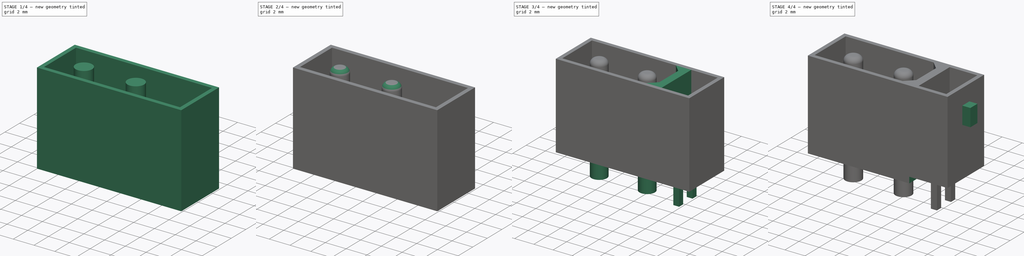
[diagram: build sequence overview — one tinted view per stage of 4, left to right]
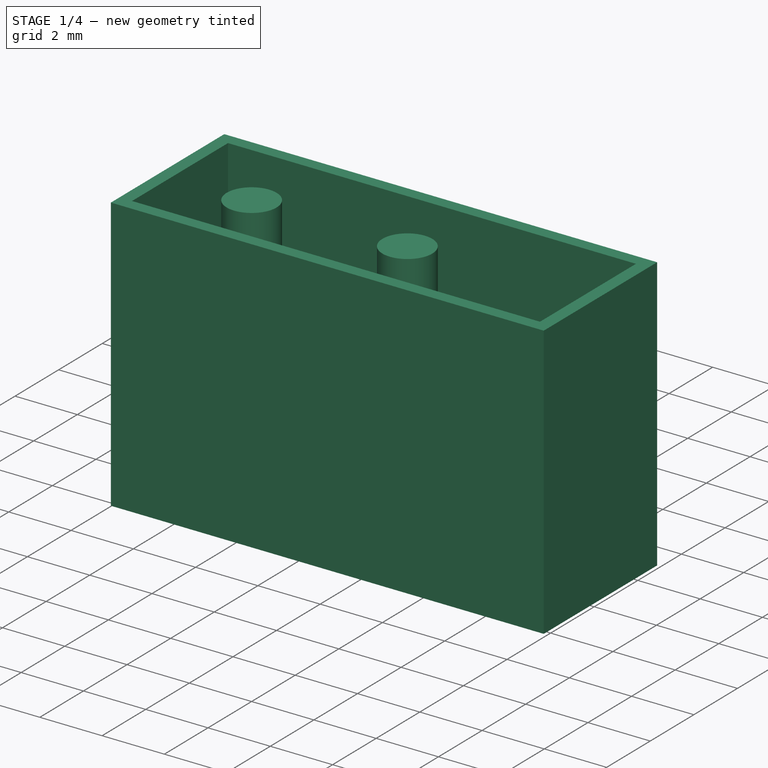
[diagram: stage 1 of 4 — iso view after this stage's code; geometry added in this stage tinted green]
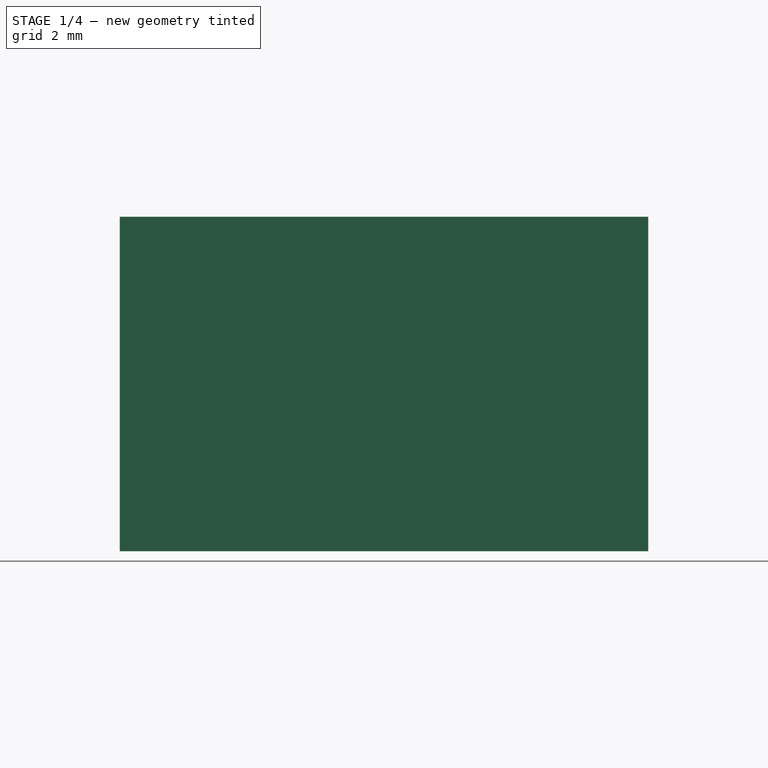
[diagram: stage 1 of 4 — front view after this stage's code; geometry added in this stage tinted green]
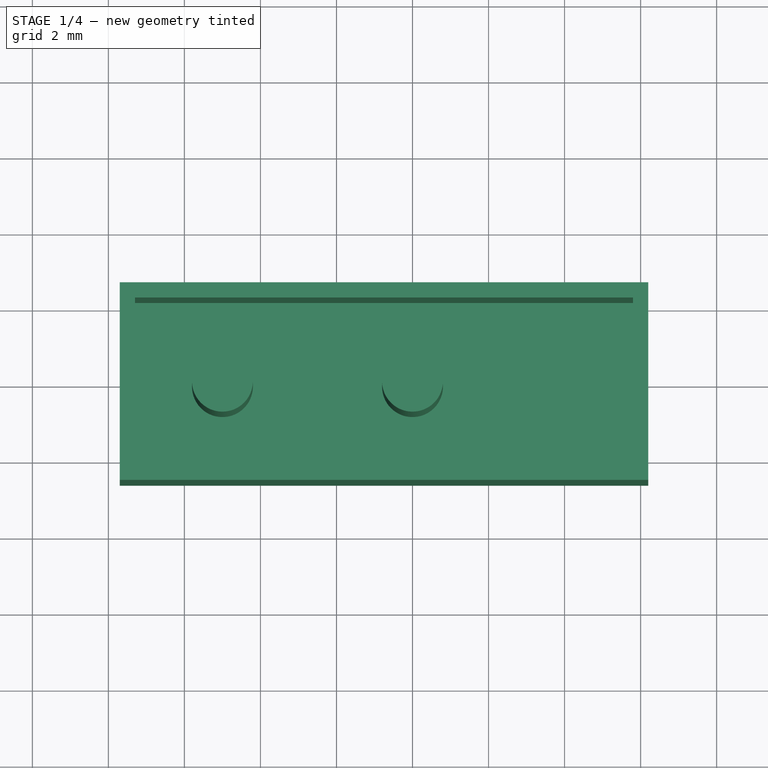
[diagram: stage 1 of 4 — top view after this stage's code; geometry added in this stage tinted green]
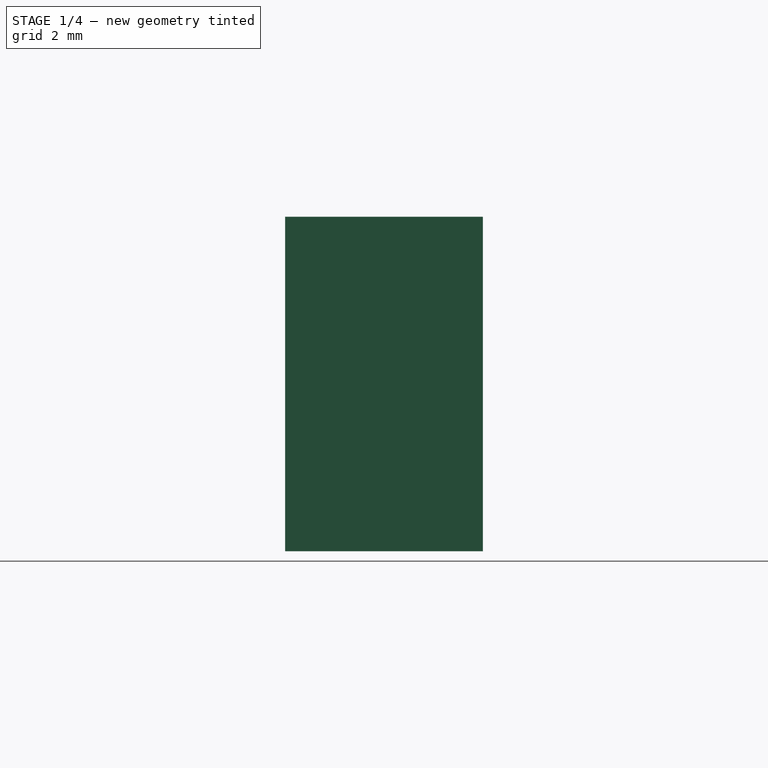
[diagram: stage 1 of 4 — right view after this stage's code; geometry added in this stage tinted green]
FCSTD DOCUMENT  (FreeCAD 1.0R38641 +678 (Git))
Label: xt30-2.2
License: All rights reserved
objects: PartDesign::Pad×9, Sketcher::SketchObject×6, PartDesign::Thickness×1, PartDesign::Fillet×1, PartDesign::Pocket×1, PartDesign::Body×1
note: 49 computed .brp shape members not serialized (recipe doc carries the construction recipe); baked Part::Feature solids carry a one-line shape summary decoded from their .brp

FEATURE [Sketcher::SketchObject] Sketch
  ArcFitTolerance = 1e-06
  AttachmentSupport = -> [XY_Plane]
  FullyConstrained = true
  MakeInternals = false
  MapMode = 5
  sketch-geometry (2):
    g0: Circle CenterX=0 CenterY=0 CenterZ=0 NormalX=0 NormalY=0 NormalZ=1 AngleXU=0 Radius=0.8
    g1: Circle CenterX=-5 CenterY=0 CenterZ=0 NormalX=0 NormalY=0 NormalZ=1 AngleXU=0 Radius=0.8
  constraints (5):
    c: Coincident(g0,g-1)
    c: PointOnObject(g1,g-1)
    c: Equal(g1,g0)
    c: Diameter(g0) = 1.6
    c: DistanceX(g1,g-1) = 5
FEATURE [Sketcher::SketchObject] Sketch001
  ArcFitTolerance = 1e-06
  AttachmentSupport = -> [XY_Plane]
  FullyConstrained = true
  MakeInternals = false
  MapMode = 5
  sketch-geometry (5):
    g0: LineSegment StartX=-7.7 StartY=-2.6 StartZ=0 EndX=6.2 EndY=-2.6 EndZ=0
    g1: LineSegment StartX=6.2 StartY=-2.6 StartZ=0 EndX=6.2 EndY=2.6 EndZ=0
    g2: LineSegment StartX=6.2 StartY=2.6 StartZ=0 EndX=-7.7 EndY=2.6 EndZ=0
    g3: LineSegment StartX=-7.7 StartY=2.6 StartZ=0 EndX=-7.7 EndY=-2.6 EndZ=0
    g4: GeomPoint X=6.2 Y=0 Z=0
  constraints (13):
    c: Coincident(g1,g2)
    c: Coincident(g2,g3)
    c: Coincident(g3,g0)
    c: Horizontal(g0)
    c: Horizontal(g2)
    c: Vertical(g1)
    c: Vertical(g3)
    c: Distance(g2,g2) = 13.9
    c: Distance(g1,g1) = 5.2
    c: Coincident(g1,g0)
    c: PointOnObject(g4,g-1)
    c: Symmetric(g1,g0,g4)
    c: Distance(g-1,g1) = 6.2
FEATURE [PartDesign::Pad] Pad
  Direction = (0,0,1)
  Length = 8.8
  Length2 = 10
  Profile = -> Sketch001
  ReferenceAxis = -> Sketch001 [N_Axis]
  Refine = true
  Suppressed = false
  Type = 0
FEATURE [PartDesign::Thickness] Thickness
  Base = -> Pad [Face6]
  BaseFeature = -> Pad
  Intersection = false
  Join = 0
  Mode = 0
  Refine = true
  Reversed = true
  SupportTransform = false
  Suppressed = false
  Value = 0.4
FEATURE [PartDesign::Pad] Pad001
  BaseFeature = -> Thickness
  Direction = (0,0,1)
  Length = 8.6
  Length2 = 10
  Profile = -> Sketch
  ReferenceAxis = -> Sketch [N_Axis]
  Refine = true
  Suppressed = false
  Type = 0
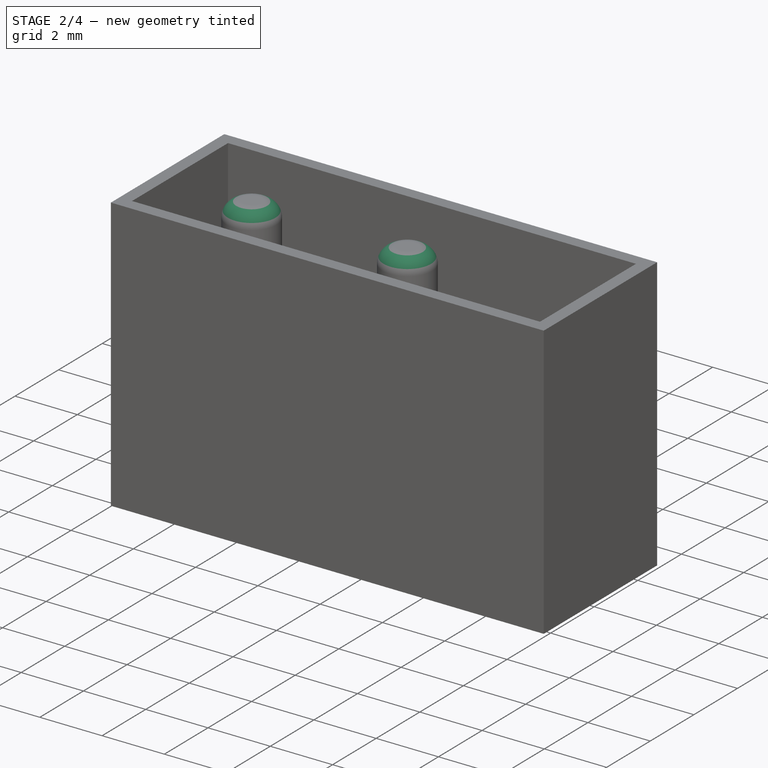
[diagram: stage 2 of 4 — iso view after this stage's code; geometry added in this stage tinted green]
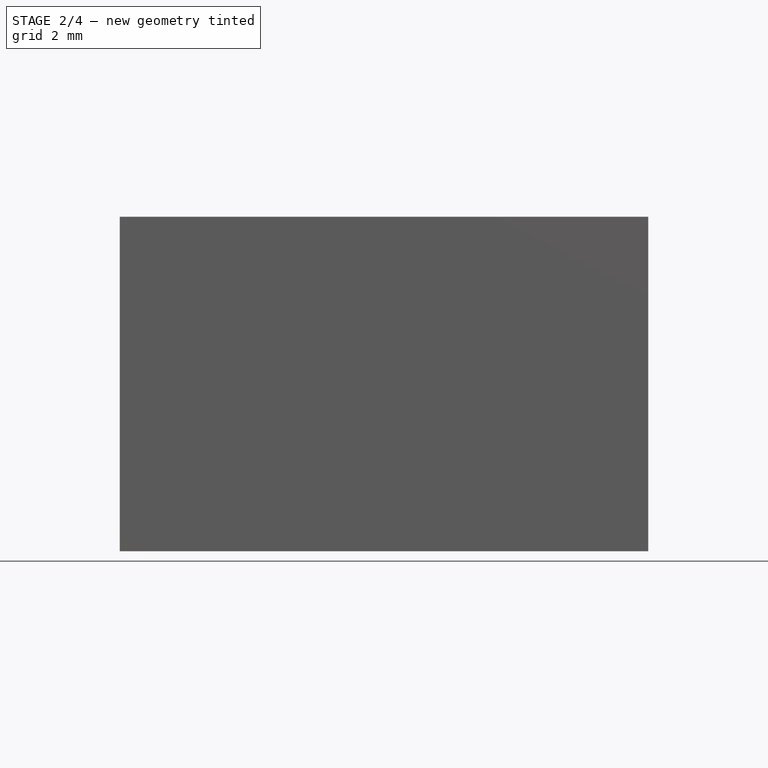
[diagram: stage 2 of 4 — front view after this stage's code; geometry added in this stage tinted green]
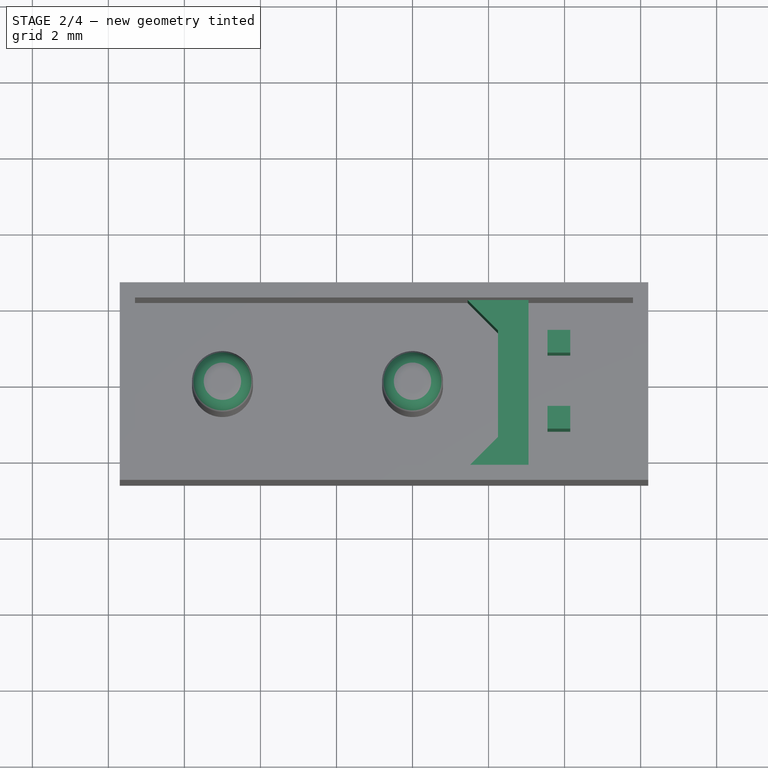
[diagram: stage 2 of 4 — top view after this stage's code; geometry added in this stage tinted green]
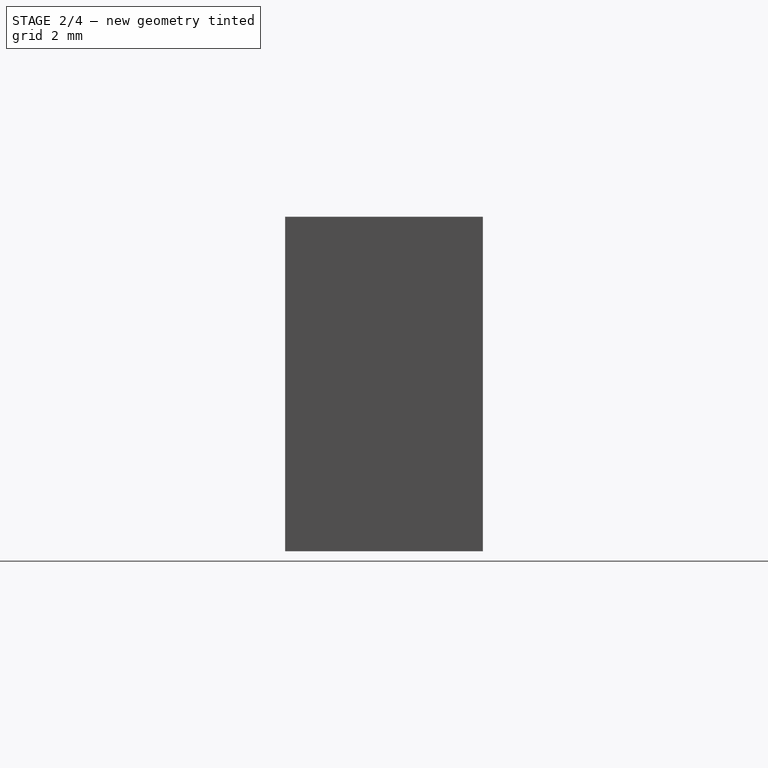
[diagram: stage 2 of 4 — right view after this stage's code; geometry added in this stage tinted green]
FEATURE [PartDesign::Fillet] Fillet
  Base = -> Pad001 [Edge30,Edge28]
  BaseFeature = -> Pad001
  Radius = 0.5
  Refine = true
  SupportTransform = false
  Suppressed = false
  UseAllEdges = false
FEATURE [Sketcher::SketchObject] Sketch002
  ArcFitTolerance = 1e-06
  AttachmentSupport = -> [XY_Plane]
  FullyConstrained = false
  MakeInternals = false
  MapMode = 5
  sketch-geometry (12):
    g0: LineSegment [constr] StartX=3.85 StartY=1.11487 StartZ=0 EndX=3.85 EndY=-0.885135 EndZ=0
    g1: GeomPoint [constr] X=3.85 Y=0 Z=0
    g2: LineSegment StartX=3.55 StartY=1.41487 StartZ=0 EndX=3.55 EndY=0.814865 EndZ=0
    g3: LineSegment StartX=3.55 StartY=0.814865 StartZ=0 EndX=4.15 EndY=0.814865 EndZ=0
    g4: LineSegment StartX=4.15 StartY=0.814865 StartZ=0 EndX=4.15 EndY=1.41487 EndZ=0
    g5: LineSegment StartX=4.15 StartY=1.41487 StartZ=0 EndX=3.55 EndY=1.41487 EndZ=0
    g6: GeomPoint [constr] X=3.85 Y=1.11487 Z=0
    g7: LineSegment StartX=3.55 StartY=-0.585135 StartZ=0 EndX=3.55 EndY=-1.18513 EndZ=0
    g8: LineSegment StartX=3.55 StartY=-1.18513 StartZ=0 EndX=4.15 EndY=-1.18513 EndZ=0
    g9: LineSegment StartX=4.15 StartY=-1.18513 StartZ=0 EndX=4.15 EndY=-0.585135 EndZ=0
    g10: LineSegment StartX=4.15 StartY=-0.585135 StartZ=0 EndX=3.55 EndY=-0.585135 EndZ=0
    g11: GeomPoint [constr] X=3.85 Y=-0.885135 Z=0
  constraints (28):
    c: Vertical(g0)
    c: PointOnObject(g1,g-1)
    c: Distance(g-1,g0) = 3.85
    c: Distance(g0,g0) = 2
    c: Coincident(g2,g3)
    c: Coincident(g3,g4)
    c: Coincident(g4,g5)
    c: Coincident(g5,g2)
    c: Vertical(g2)
    c: Vertical(g4)
    c: Horizontal(g3)
    c: Horizontal(g5)
    c: Symmetric(g4,g2,g6)
    c: Coincident(g6,g0)
    c: Coincident(g7,g8)
    c: Coincident(g8,g9)
    c: Coincident(g9,g10)
    c: Coincident(g10,g7)
    c: Vertical(g7)
    c: Vertical(g9)
    c: Horizontal(g8)
    c: Horizontal(g10)
    c: Symmetric(g9,g7,g11)
    c: Coincident(g11,g0)
    c: Equal(g9,g10)
    c: Equal(g10,g3)
    c: Equal(g3,g4)
    c: Distance(g3,g3) = 0.6
FEATURE [PartDesign::Pad] Pad002
  BaseFeature = -> Fillet
  Direction = (0,0,1)
  Length = 5
  Length2 = 10
  Profile = -> Sketch002
  ReferenceAxis = -> Sketch002 [N_Axis]
  Refine = true
  Suppressed = false
  Type = 0
FEATURE [Sketcher::SketchObject] Sketch003
  ArcFitTolerance = 1e-06
  AttachmentSupport = -> [XY_Plane]
  ExternalGeometry = -> [Pad002]
  FullyConstrained = false
  MakeInternals = false
  MapMode = 5
  sketch-geometry (8):
    g0: LineSegment StartX=1.05 StartY=2.6 StartZ=0 EndX=2.25 EndY=1.4 EndZ=0
    g1: LineSegment StartX=2.25 StartY=1.4 StartZ=0 EndX=2.25 EndY=0 EndZ=0
    g2: LineSegment StartX=3.05 StartY=0 StartZ=0 EndX=3.05 EndY=2.6 EndZ=0
    g3: LineSegment StartX=3.05 StartY=2.6 StartZ=0 EndX=1.05 EndY=2.6 EndZ=0
    g4: LineSegment StartX=1.05 StartY=-2.6 StartZ=0 EndX=2.25 EndY=-1.4 EndZ=0
    g5: LineSegment StartX=2.25 StartY=-1.4 StartZ=0 EndX=2.25 EndY=0 EndZ=0
    g6: LineSegment StartX=3.05 StartY=0 StartZ=0 EndX=3.05 EndY=-2.6 EndZ=0
    g7: LineSegment StartX=3.05 StartY=-2.6 StartZ=0 EndX=1.05 EndY=-2.6 EndZ=0
  constraints (21):
    c: PointOnObject(g0,g-3)
    c: Coincident(g1,g0)
    c: PointOnObject(g1,g-1)
    c: Vertical(g1)
    c: PointOnObject(g2,g-1)
    c: PointOnObject(g2,g-3)
    c: Vertical(g2)
    c: Coincident(g3,g2)
    c: Coincident(g3,g0)
    c: Distance(g3,g3) = 2
    c: Distance(g2,g1) = 0.8
    c: Angle(g0,g1) = 2.35619
    c: Distance(g1,g-2) = 2.25
    c: Coincident(g5,g4)
    c: Vertical(g5)
    c: Vertical(g6)
    c: Coincident(g7,g6)
    c: Coincident(g7,g4)
    c: Distance(g7,g7) = 2
    c: Distance(g6,g5) = 0.8
    c: Angle(g4,g5) = -2.35619
FEATURE [PartDesign::Pad] Pad003
  BaseFeature = -> Pad002
  Direction = (0,0,1)
  Length = 5
  Length2 = 10
  Profile = -> Sketch003
  ReferenceAxis = -> Sketch003 [N_Axis]
  Refine = true
  Suppressed = false
  Type = 0
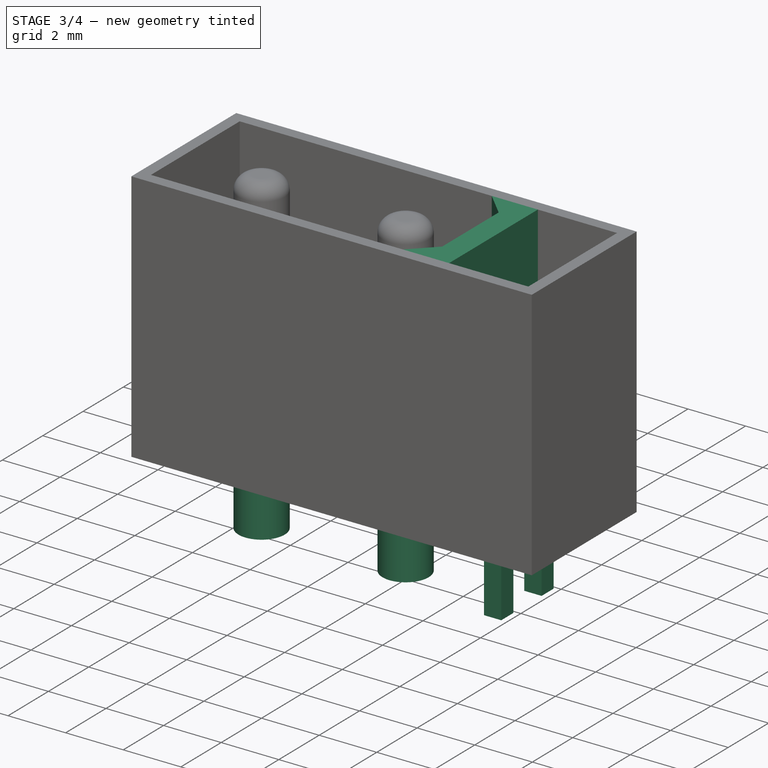
[diagram: stage 3 of 4 — iso view after this stage's code; geometry added in this stage tinted green]
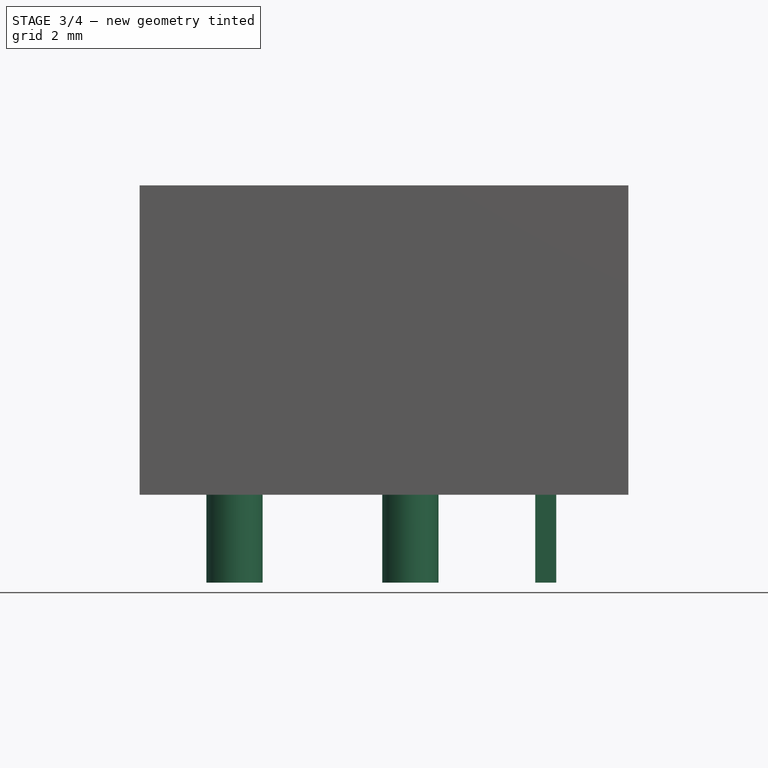
[diagram: stage 3 of 4 — front view after this stage's code; geometry added in this stage tinted green]
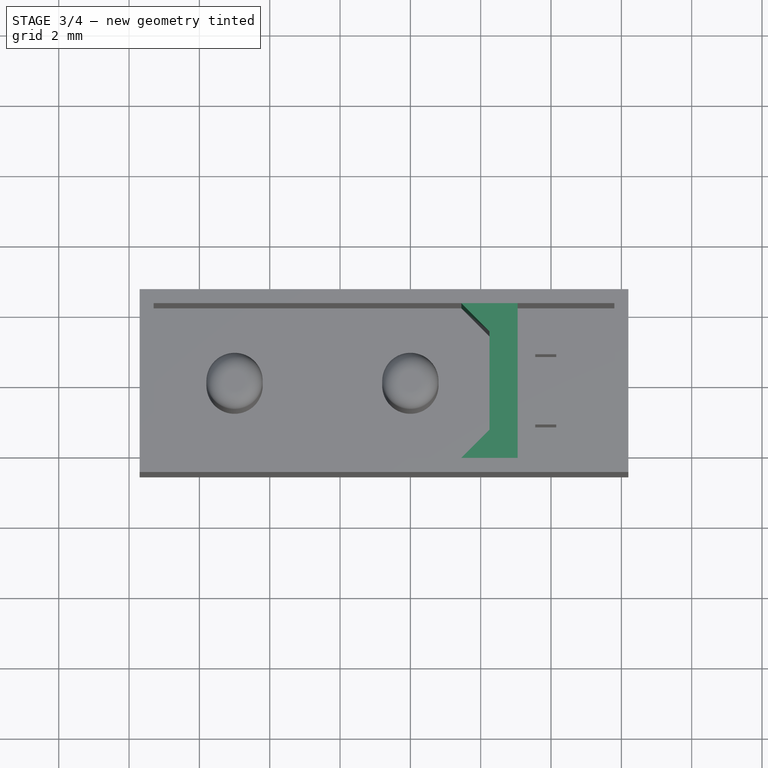
[diagram: stage 3 of 4 — top view after this stage's code; geometry added in this stage tinted green]
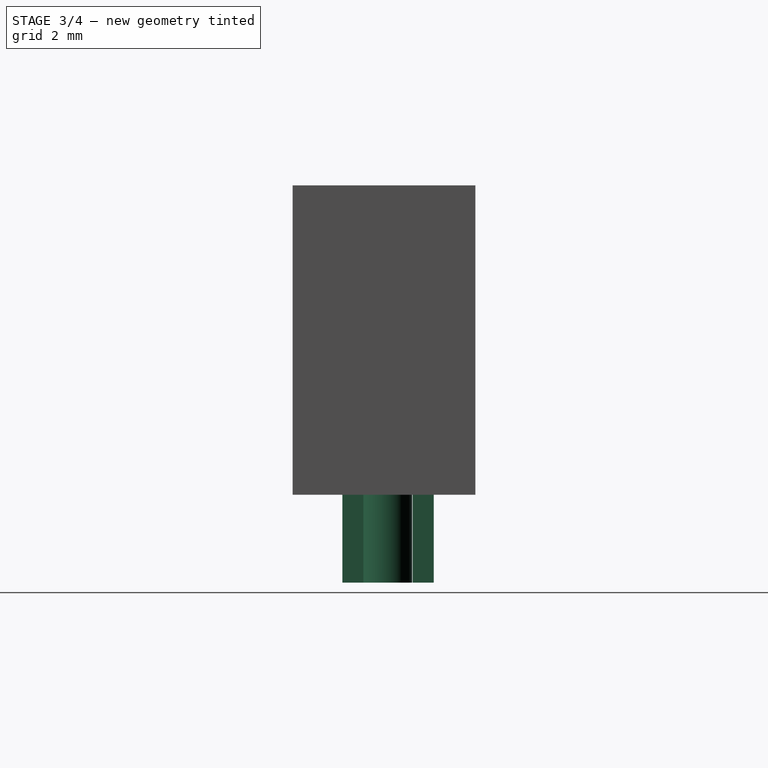
[diagram: stage 3 of 4 — right view after this stage's code; geometry added in this stage tinted green]
FEATURE [PartDesign::Pad] Pad004
  BaseFeature = -> Pad003
  Direction = (0,0,1)
  Length = 10
  Length2 = 10
  Profile = -> Sketch003
  ReferenceAxis = -> Sketch003 [N_Axis]
  Refine = true
  Suppressed = false
  Type = 3
  UpToFace = -> Pad003 [Face12]
FEATURE [PartDesign::Pad] Pad005
  BaseFeature = -> Pad004
  Direction = (0,0,1)
  Length = 2.5
  Length2 = 10
  Profile = -> Sketch002
  ReferenceAxis = -> Sketch002 [N_Axis]
  Refine = true
  Reversed = true
  Suppressed = false
  Type = 0
FEATURE [PartDesign::Pad] Pad006
  BaseFeature = -> Pad005
  Direction = (0,0,1)
  Length = 2.5
  Length2 = 10
  Profile = -> Sketch
  ReferenceAxis = -> Sketch [N_Axis]
  Refine = true
  Reversed = true
  Suppressed = false
  Type = 0
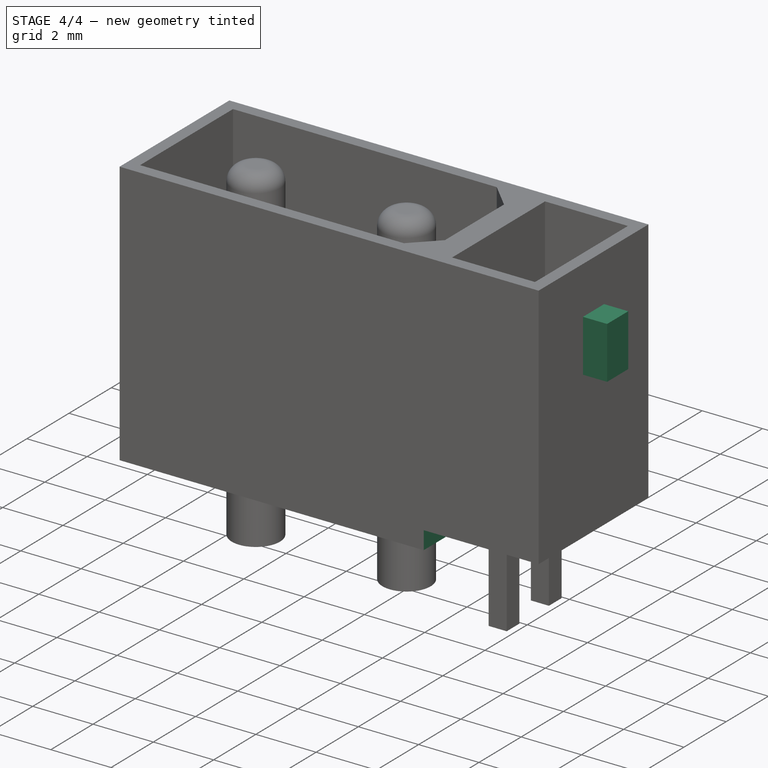
[diagram: stage 4 of 4 — iso view after this stage's code; geometry added in this stage tinted green]
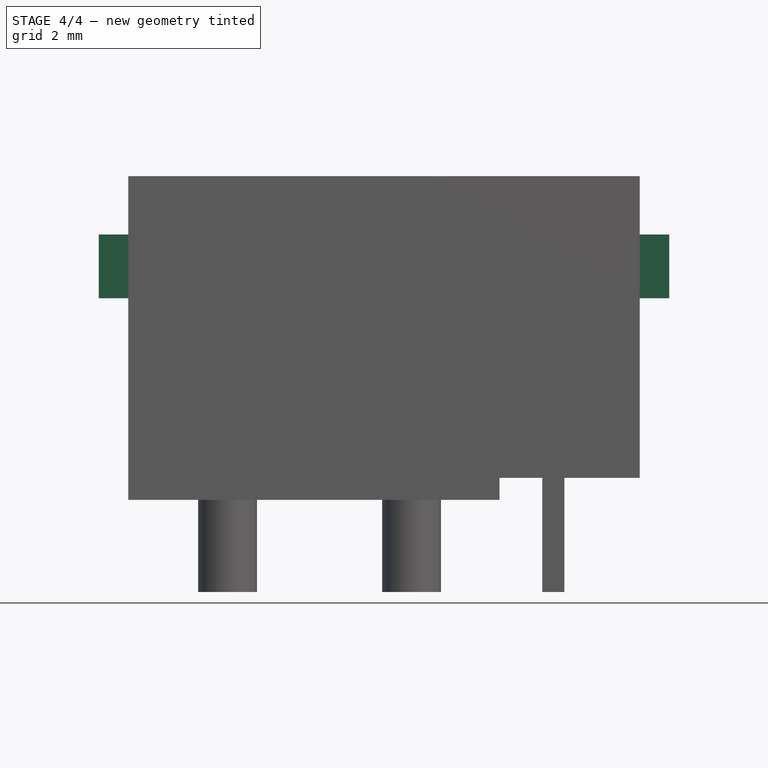
[diagram: stage 4 of 4 — front view after this stage's code; geometry added in this stage tinted green]
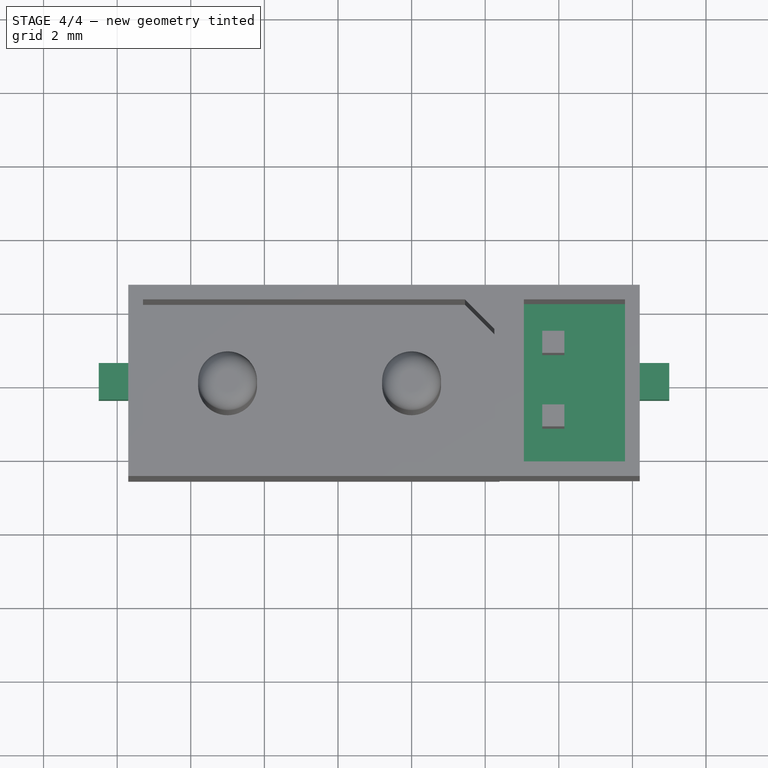
[diagram: stage 4 of 4 — top view after this stage's code; geometry added in this stage tinted green]
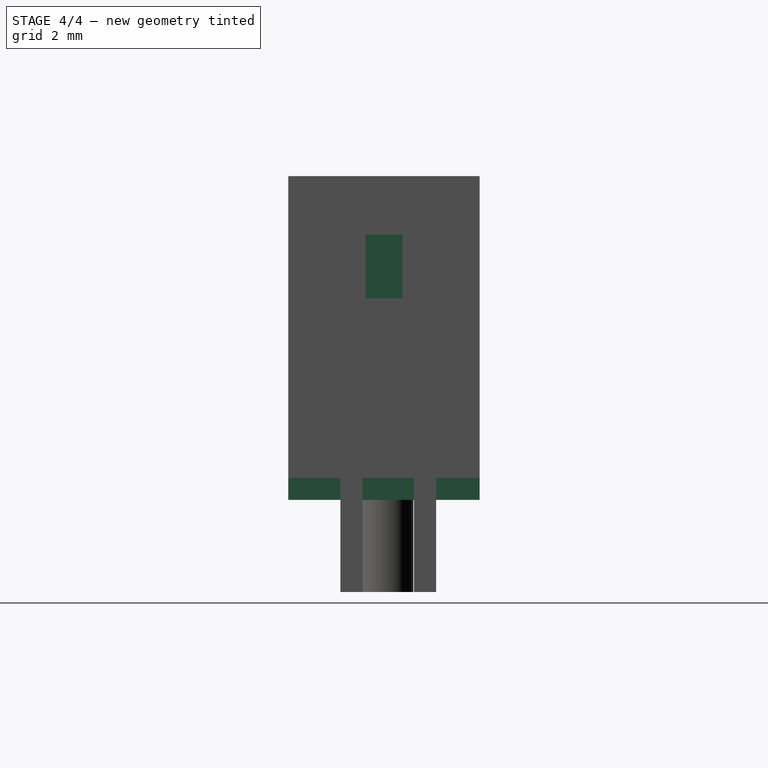
[diagram: stage 4 of 4 — right view after this stage's code; geometry added in this stage tinted green]
FEATURE [PartDesign::Pad] Pad007
  BaseFeature = -> Pad006
  Direction = (0,0,1)
  Length = 1
  Length2 = 10
  Profile = -> Pad006 [Face32]
  Refine = true
  Suppressed = false
  Type = 0
FEATURE [Sketcher::SketchObject] Sketch004
  ArcFitTolerance = 1e-06
  AttachmentSupport = -> [Pad007]
  ExternalGeometry = -> [Pad007]
  FullyConstrained = false
  MakeInternals = false
  MapMode = 5
  Placement = pos=(0,0,0) rot=(1,0,0;3.14159rad)
  sketch-geometry (12):
    g0: LineSegment StartX=6.2 StartY=2.6 StartZ=0 EndX=2.38807 EndY=2.6 EndZ=0
    g1: LineSegment StartX=2.38807 StartY=2.6 StartZ=0 EndX=2.38807 EndY=-2.6 EndZ=0
    g2: LineSegment StartX=2.38807 StartY=-2.6 StartZ=0 EndX=6.2 EndY=-2.6 EndZ=0
    g3: LineSegment StartX=6.2 StartY=-2.6 StartZ=0 EndX=6.2 EndY=2.6 EndZ=0
    g4: LineSegment StartX=4.15 StartY=1.18513 StartZ=0 EndX=3.55 EndY=1.18513 EndZ=0
    g5: LineSegment StartX=3.55 StartY=1.18513 StartZ=0 EndX=3.55 EndY=0.585135 EndZ=0
    g6: LineSegment StartX=3.55 StartY=0.585135 StartZ=0 EndX=4.15 EndY=0.585135 EndZ=0
    g7: LineSegment StartX=4.15 StartY=0.585135 StartZ=0 EndX=4.15 EndY=1.18513 EndZ=0
    g8: LineSegment StartX=4.15 StartY=-0.814865 StartZ=0 EndX=3.55 EndY=-0.814865 EndZ=0
    g9: LineSegment StartX=3.55 StartY=-0.814865 StartZ=0 EndX=3.55 EndY=-1.41487 EndZ=0
    g10: LineSegment StartX=3.55 StartY=-1.41487 StartZ=0 EndX=4.15 EndY=-1.41487 EndZ=0
    g11: LineSegment StartX=4.15 StartY=-1.41487 StartZ=0 EndX=4.15 EndY=-0.814865 EndZ=0
  constraints (30):
    c: Coincident(g0,g1)
    c: Coincident(g1,g2)
    c: Coincident(g2,g3)
    c: Coincident(g3,g0)
    c: Horizontal(g0)
    c: Horizontal(g2)
    c: Vertical(g1)
    c: Vertical(g3)
    c: Coincident(g0,g-3)
    c: PointOnObject(g1,g-4)
    c: Coincident(g4,g5)
    c: Coincident(g5,g6)
    c: Coincident(g6,g7)
    c: Coincident(g7,g4)
    c: Horizontal(g4)
    c: Horizontal(g6)
    c: Vertical(g5)
    c: Vertical(g7)
    c: Coincident(g4,g-5)
    c: Coincident(g5,g-6)
    c: Coincident(g8,g9)
    c: Coincident(g9,g10)
    c: Coincident(g10,g11)
    c: Coincident(g11,g8)
    c: Horizontal(g8)
    c: Horizontal(g10)
    c: Vertical(g9)
    c: Vertical(g11)
    c: Coincident(g8,g-7)
    c: Coincident(g9,g-8)
FEATURE [PartDesign::Pocket] Pocket
  BaseFeature = -> Pad007
  Direction = (0,0,1)
  Length = 0.6
  Length2 = 5
  Profile = -> Sketch004
  ReferenceAxis = -> Sketch004 [N_Axis]
  Refine = true
  Suppressed = false
  Type = 0
FEATURE [Sketcher::SketchObject] Sketch006
  ArcFitTolerance = 1e-06
  AttachmentSupport = -> [XZ_Plane]
  ExternalGeometry = -> [Pocket]
  FullyConstrained = false
  MakeInternals = false
  MapMode = 5
  Placement = pos=(0,0,0) rot=(1,0,0;1.5708rad)
  sketch-geometry (9):
    g0: LineSegment [constr] StartX=-11.7066 StartY=7.21345 StartZ=0 EndX=7 EndY=7.21345 EndZ=0
    g1: LineSegment StartX=7 StartY=7.21345 StartZ=0 EndX=6.2 EndY=7.21345 EndZ=0
    g2: LineSegment StartX=6.2 StartY=7.21345 StartZ=0 EndX=6.2 EndY=5.47887 EndZ=0
    g3: LineSegment StartX=6.2 StartY=5.47887 StartZ=0 EndX=7 EndY=5.47887 EndZ=0
    g4: LineSegment StartX=7 StartY=5.47887 StartZ=0 EndX=7 EndY=7.21345 EndZ=0
    g5: LineSegment StartX=-7.7 StartY=7.21345 StartZ=0 EndX=-8.5 EndY=7.21345 EndZ=0
    g6: LineSegment StartX=-8.5 StartY=7.21345 StartZ=0 EndX=-8.5 EndY=5.47887 EndZ=0
    g7: LineSegment StartX=-8.5 StartY=5.47887 StartZ=0 EndX=-7.7 EndY=5.47887 EndZ=0
    g8: LineSegment StartX=-7.7 StartY=5.47887 StartZ=0 EndX=-7.7 EndY=7.21345 EndZ=0
  constraints (24):
    c: Horizontal(g0)
    c: Coincident(g1,g0)
    c: PointOnObject(g1,g0)
    c: Coincident(g2,g1)
    c: PointOnObject(g2,g-3)
    c: Vertical(g2)
    c: Coincident(g3,g2)
    c: Horizontal(g3)
    c: Coincident(g4,g3)
    c: Coincident(g4,g0)
    c: Vertical(g4)
    c: PointOnObject(g5,g0)
    c: PointOnObject(g5,g0)
    c: Coincident(g6,g5)
    c: Vertical(g6)
    c: Coincident(g7,g6)
    c: PointOnObject(g7,g-4)
    c: Coincident(g8,g7)
    c: Coincident(g8,g5)
    c: Vertical(g8)
    c: Horizontal(g7)
    c: Equal(g6,g4)
    c: Equal(g1,g5)
    c: Distance(g6,g4) = 15.5
FEATURE [PartDesign::Pad] Pad008
  BaseFeature = -> Pocket
  Direction = (0,-1,2e-16)
  Length = 0.5
  Length2 = 0.5
  Profile = -> Sketch006
  ReferenceAxis = -> Sketch006 [N_Axis]
  Refine = true
  Suppressed = false
  Type = 4
FEATURE [PartDesign::Body] Body
  AllowCompound = false
  Group = -> [Sketch,Sketch001,Pad,Thickness,Pad001,Fillet,Sketch002,Pad002,Sketch003,Pad003,Pad004,Pad005,Pad006,Pad007,Sketch004,Pocket,Sketch006,Pad008]
  Origin = -> Origin
  Tip = -> Pad008
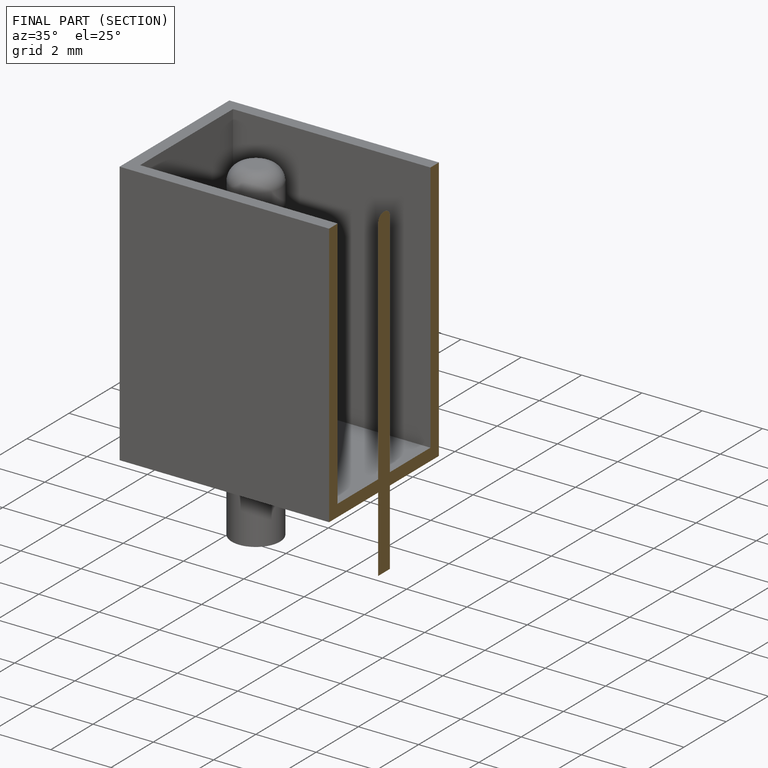
[diagram: finished part — half-section view (interior)]
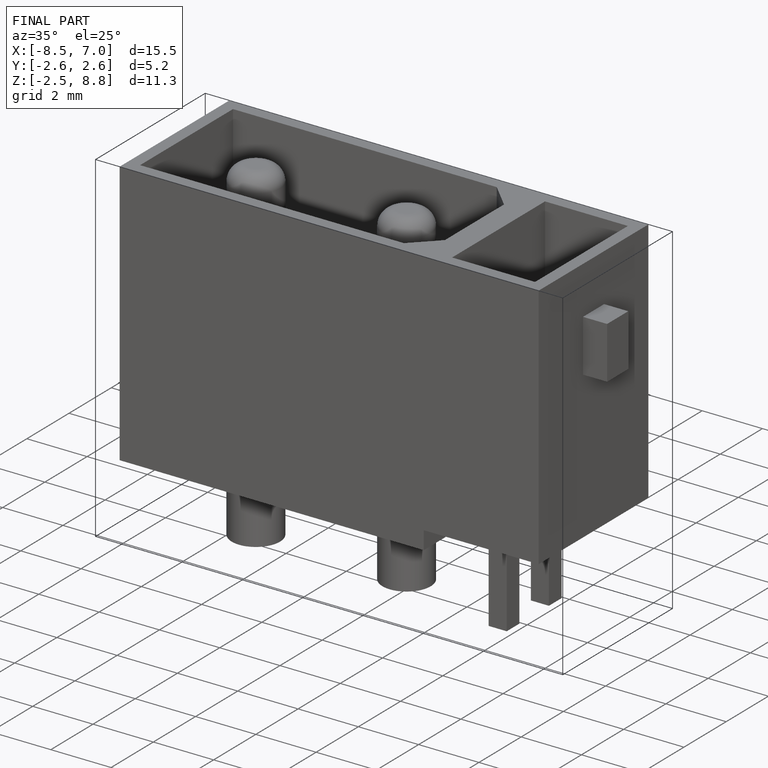
[diagram: finished part — iso view with bounding-box wireframe]
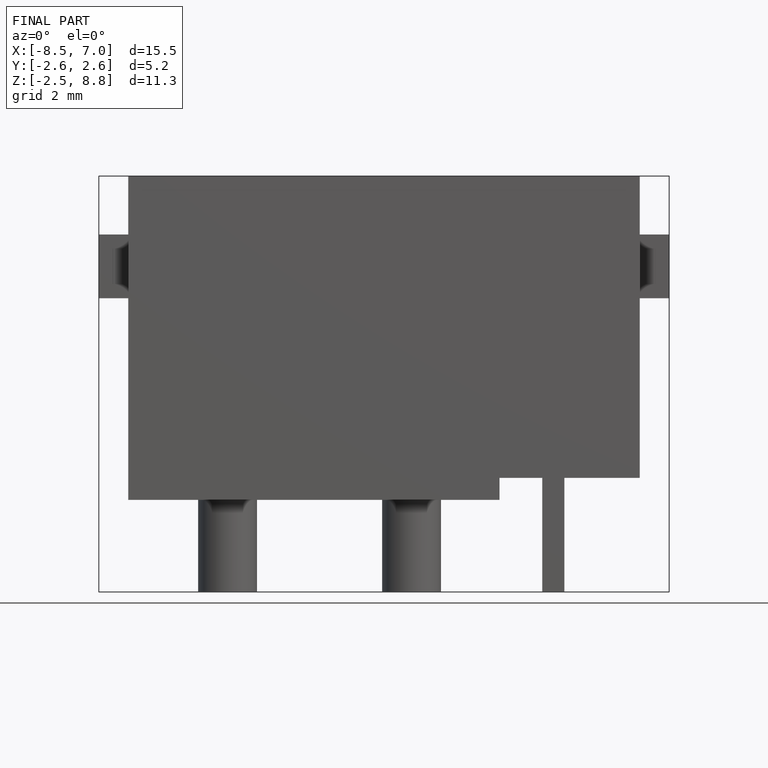
[diagram: finished part — front view with bounding-box wireframe]
